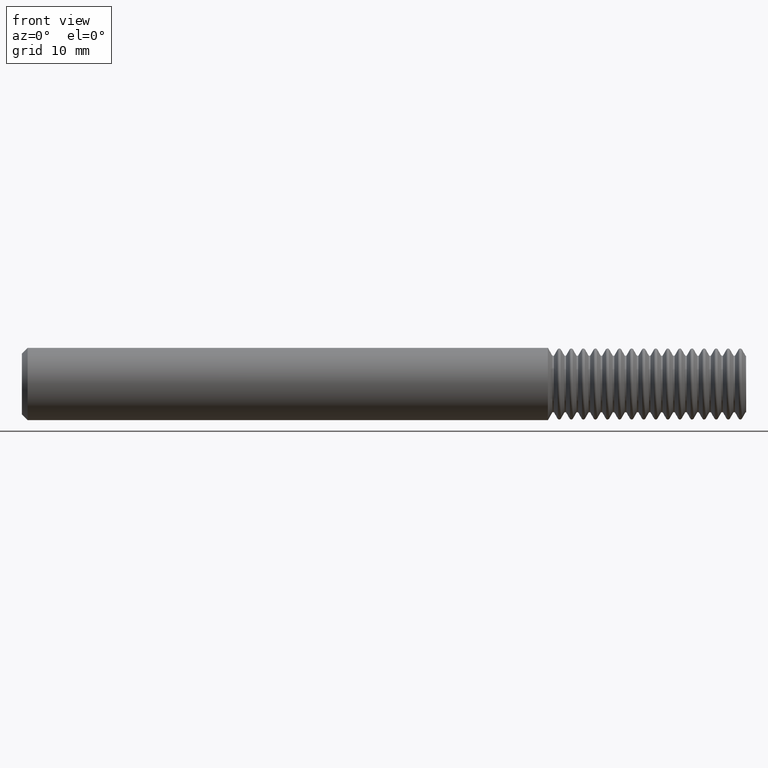
[diagram: clean part render]
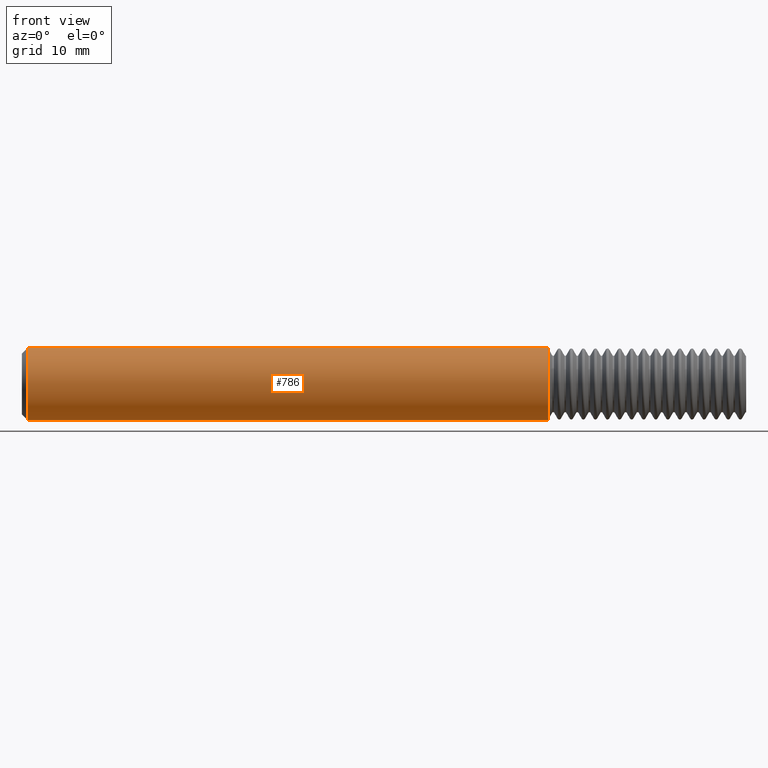
[diagram: same view with one face highlighted and labeled with its STEP entity id]
A machine part, front view. The second image highlights one B-rep face of the part: STEP entity #786.
In plain terms, the highlighted cylindrical surface (edge-blend (fillet) strip) has radius 3.1712 mm, axis along (-1, -0, -0).
Its self-contained STEP definition (entity closure, byte-faithful):
#4 = EDGE_CURVE ( 'NONE', #1434, #2873, #3017, .T. ) ;
#9 = CARTESIAN_POINT ( 'NONE',  ( 1.815703988889129539, 1.528971528735475660E-17, -0.1248500000000004051 ) ) ;
#74 = CYLINDRICAL_SURFACE ( 'NONE', #566, 0.1248500000000000304 ) ;
#87 = CARTESIAN_POINT ( 'NONE',  ( 1.850000000000000311, 0.000000000000000000, 0.000000000000000000 ) ) ;
#200 = AXIS2_PLACEMENT_3D ( 'NONE', #1049, #802, #2212 ) ;
#332 = VECTOR ( 'NONE', #2443, 39.37007874015748143 ) ;
#370 = CIRCLE ( 'NONE', #200, 0.1248500000000000304 ) ;
#432 = CARTESIAN_POINT ( 'NONE',  ( 1.850000000000000311, 0.000000000000000000, 0.1248500000000000304 ) ) ;
#453 = DIRECTION ( 'NONE',  ( -1.000000000000000000, -0.000000000000000000, -0.000000000000000000 ) ) ;
#566 = AXIS2_PLACEMENT_3D ( 'NONE', #87, #669, #2029 ) ;
#641 = EDGE_CURVE ( 'NONE', #1434, #2311, #3309, .T. ) ;
#669 = DIRECTION ( 'NONE',  ( -1.000000000000000000, -0.000000000000000000, -0.000000000000000000 ) ) ;
#786 = ADVANCED_FACE ( 'NONE', ( #1437 ), #74, .T. ) ;
#802 = DIRECTION ( 'NONE',  ( 1.000000000000000000, -0.000000000000000000, -0.000000000000000000 ) ) ;
#1049 = CARTESIAN_POINT ( 'NONE',  ( 0.01999999999999924061, 0.000000000000000000, 0.000000000000000000 ) ) ;
#1170 = CARTESIAN_POINT ( 'NONE',  ( 1.815703988889129539, 0.000000000000000000, 0.000000000000000000 ) ) ;
#1175 = CARTESIAN_POINT ( 'NONE',  ( 0.01999999999999924061, 1.528971528735470730E-17, 0.1248500000000000304 ) ) ;
#1393 = CARTESIAN_POINT ( 'NONE',  ( 1.815703988889129539, 0.000000000000000000, 0.1248500000000004051 ) ) ;
#1432 = DIRECTION ( 'NONE',  ( 0.000000000000000000, 0.000000000000000000, 1.000000000000000000 ) ) ;
#1434 = VERTEX_POINT ( 'NONE', #9 ) ;
#1437 = FACE_OUTER_BOUND ( 'NONE', #3292, .T. ) ;
#1480 = DIRECTION ( 'NONE',  ( -1.000000000000000000, -0.000000000000000000, -0.000000000000000000 ) ) ;
#1512 = ORIENTED_EDGE ( 'NONE', *, *, #641, .F. ) ;
#1558 = ORIENTED_EDGE ( 'NONE', *, *, #4, .T. ) ;
#1912 = CARTESIAN_POINT ( 'NONE',  ( 1.850000000000000311, 1.528971528735470730E-17, -0.1248500000000000304 ) ) ;
#2029 = DIRECTION ( 'NONE',  ( 0.000000000000000000, 0.000000000000000000, 1.000000000000000000 ) ) ;
#2033 = ORIENTED_EDGE ( 'NONE', *, *, #3555, .T. ) ;
#2212 = DIRECTION ( 'NONE',  ( 0.000000000000000000, 0.000000000000000000, -1.000000000000000000 ) ) ;
#2304 = LINE ( 'NONE', #432, #2450 ) ;
#2311 = VERTEX_POINT ( 'NONE', #3254 ) ;
#2443 = DIRECTION ( 'NONE',  ( -1.000000000000000000, -0.000000000000000000, -0.000000000000000000 ) ) ;
#2450 = VECTOR ( 'NONE', #453, 39.37007874015748143 ) ;
#2679 = EDGE_CURVE ( 'NONE', #3407, #2311, #370, .T. ) ;
#2796 = AXIS2_PLACEMENT_3D ( 'NONE', #1170, #1480, #1432 ) ;
#2873 = VERTEX_POINT ( 'NONE', #1393 ) ;
#3017 = CIRCLE ( 'NONE', #2796, 0.1248500000000003773 ) ;
#3254 = CARTESIAN_POINT ( 'NONE',  ( 0.01999999999999924061, 0.000000000000000000, -0.1248500000000000304 ) ) ;
#3292 = EDGE_LOOP ( 'NONE', ( #1512, #1558, #2033, #3512 ) ) ;
#3309 = LINE ( 'NONE', #1912, #332 ) ;
#3407 = VERTEX_POINT ( 'NONE', #1175 ) ;
#3512 = ORIENTED_EDGE ( 'NONE', *, *, #2679, .T. ) ;
#3555 = EDGE_CURVE ( 'NONE', #2873, #3407, #2304, .T. ) ;